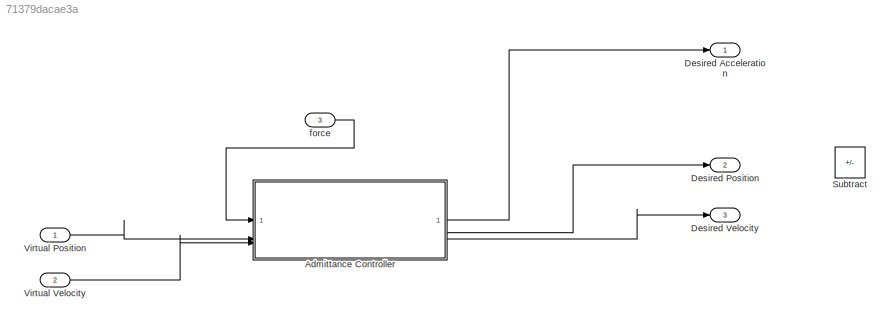
MODEL slx_71379dacae3a
KIND model
CONFIG AbsTol = auto
CONFIG EnableMultiTasking = off
CONFIG FixedStep = auto
CONFIG MaxStep = auto
CONFIG MinStep = auto
CONFIG RelTol = 1e-3
CONFIG SampleTimeConstraint = Unconstrained
CONFIG SolverName = VariableStepAuto
CONFIG StartTime = 0.0
CONFIG StopTime = 10.0
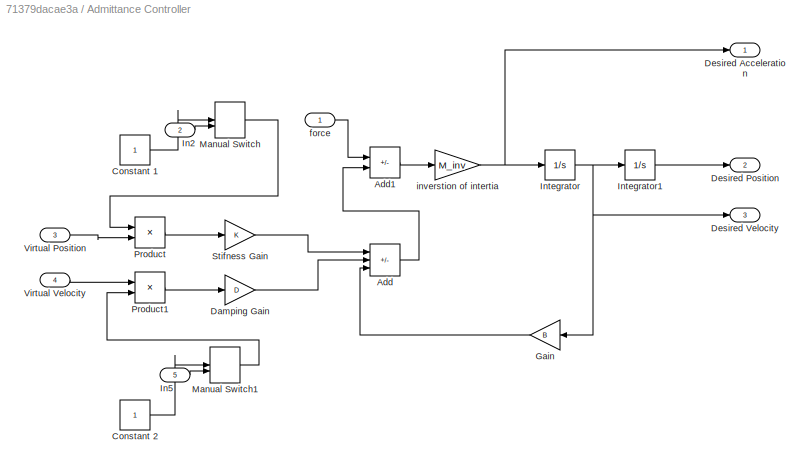
BLOCK [SubSystem] Admittance Controller
BLOCK [Sum] Admittance Controller/Add
  IconShape = rectangular
  Inputs = ++-
BLOCK [Sum] Admittance Controller/Add1
  IconShape = rectangular
  Inputs = -+
BLOCK [Constant] Admittance Controller/Constant 1
BLOCK [Constant] Admittance Controller/Constant 2
BLOCK [Gain] Admittance Controller/Damping Gain
  Gain = D
BLOCK [Outport] Admittance Controller/Desired Acceleration
BLOCK [Outport] Admittance Controller/Desired Position
  Port = 2
BLOCK [Outport] Admittance Controller/Desired Velocity
  Port = 3
BLOCK [Gain] Admittance Controller/Gain
  Gain = B
BLOCK [Inport] Admittance Controller/In2
  Port = 2
BLOCK [Inport] Admittance Controller/In5
  Port = 5
BLOCK [Integrator] Admittance Controller/Integrator
BLOCK [Integrator] Admittance Controller/Integrator1
BLOCK [ManualSwitch] Admittance Controller/Manual Switch
BLOCK [ManualSwitch] Admittance Controller/Manual Switch1
BLOCK [Product] Admittance Controller/Product
BLOCK [Product] Admittance Controller/Product1
BLOCK [Gain] Admittance Controller/Stifness Gain
  Gain = K
BLOCK [Inport] Admittance Controller/Virtual Position
  Port = 3
BLOCK [Inport] Admittance Controller/Virtual Velocity
  Port = 4
BLOCK [Inport] Admittance Controller/force
BLOCK [Gain] Admittance Controller/inverstion of intertia
  Gain = M_inv
BLOCK [Outport] Desired Acceleration
BLOCK [Outport] Desired Position
  Port = 2
BLOCK [Outport] Desired Velocity
  Port = 3
BLOCK [Sum] Subtract
  IconShape = rectangular
  Inputs = +-
BLOCK [Inport] Virtual Position
BLOCK [Inport] Virtual Velocity
  Port = 2
BLOCK [Inport] force
  Port = 3
LINE Admittance Controller/Add1:1 -> Admittance Controller/inverstion of intertia:1
LINE Admittance Controller/Add:1 -> Admittance Controller/Add1:2
LINE Admittance Controller/Constant 1:1 -> Admittance Controller/Manual Switch:1
LINE Admittance Controller/Constant 2:1 -> Admittance Controller/Manual Switch1:1
LINE Admittance Controller/Damping Gain:1 -> Admittance Controller/Add:2
LINE Admittance Controller/Gain:1 -> Admittance Controller/Add:3
LINE Admittance Controller/In2:1 -> Admittance Controller/Manual Switch:2
LINE Admittance Controller/In5:1 -> Admittance Controller/Manual Switch1:2
LINE Admittance Controller/Integrator1:1 -> Admittance Controller/Desired Position:1
NET Admittance Controller/Integrator:1 -> Admittance Controller/Desired Velocity:1, Admittance Controller/Gain:1, Admittance Controller/Integrator1:1
LINE Admittance Controller/Manual Switch1:1 -> Admittance Controller/Product1:2
LINE Admittance Controller/Manual Switch:1 -> Admittance Controller/Product:1
LINE Admittance Controller/Product1:1 -> Admittance Controller/Damping Gain:1
LINE Admittance Controller/Product:1 -> Admittance Controller/Stifness Gain:1
LINE Admittance Controller/Stifness Gain:1 -> Admittance Controller/Add:1
LINE Admittance Controller/Virtual Position:1 -> Admittance Controller/Product:2
LINE Admittance Controller/Virtual Velocity:1 -> Admittance Controller/Product1:1
LINE Admittance Controller/force:1 -> Admittance Controller/Add1:1
NET Admittance Controller/inverstion of intertia:1 -> Admittance Controller/Desired Acceleration:1, Admittance Controller/Integrator:1
LINE Admittance Controller:1 -> Desired Acceleration:1
LINE Admittance Controller:2 -> Desired Position:1
LINE Admittance Controller:3 -> Desired Velocity:1
LINE Virtual Position:1 -> Admittance Controller:3
LINE Virtual Velocity:1 -> Admittance Controller:4
LINE force:1 -> Admittance Controller:1
note: NET lines group one-source signal fan-out (src -> all destinations, sorted); 1:1 wires keep LINE
